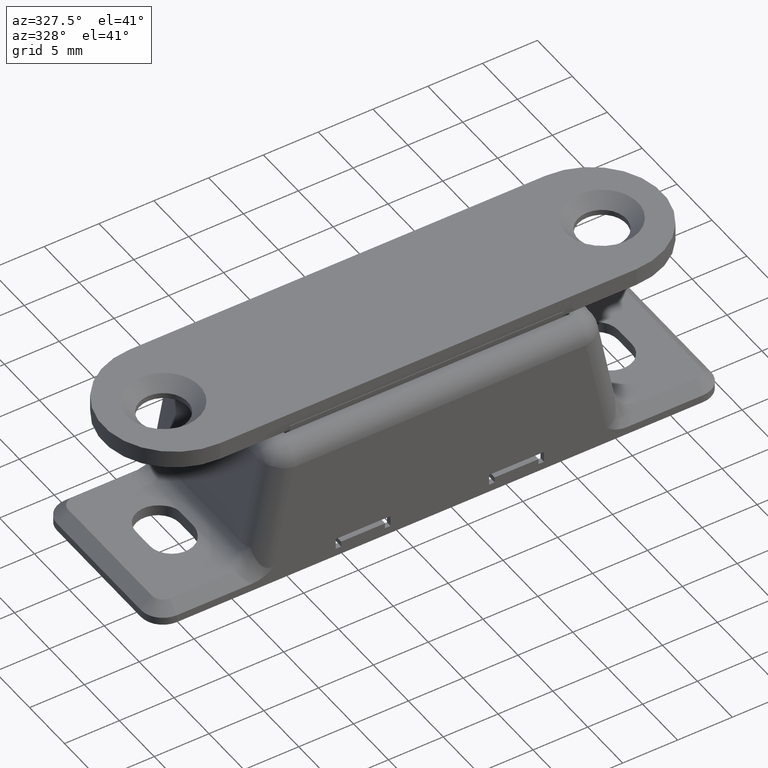
[diagram: clean part render]
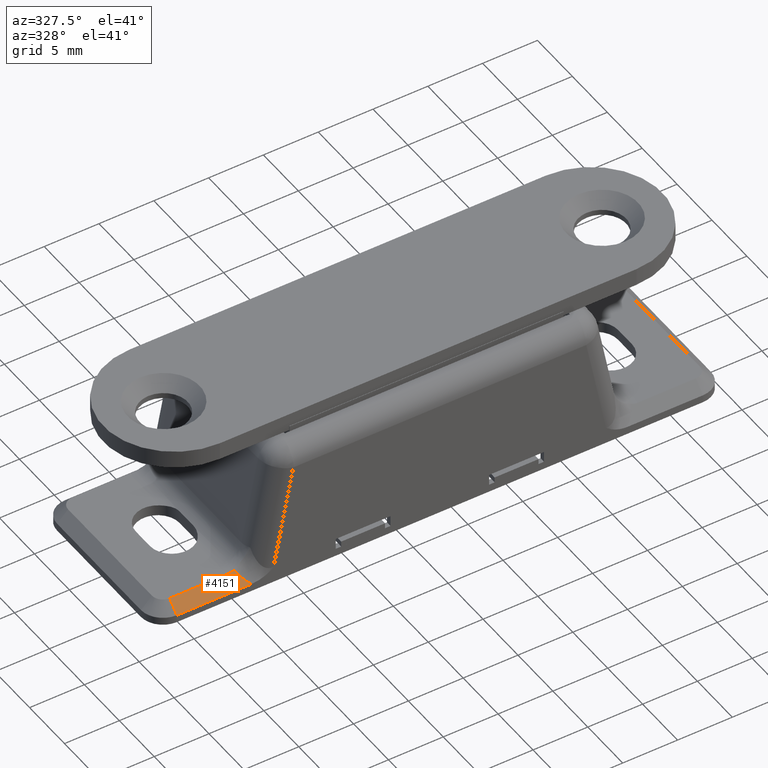
[diagram: same view with one face highlighted and labeled with its STEP entity id]
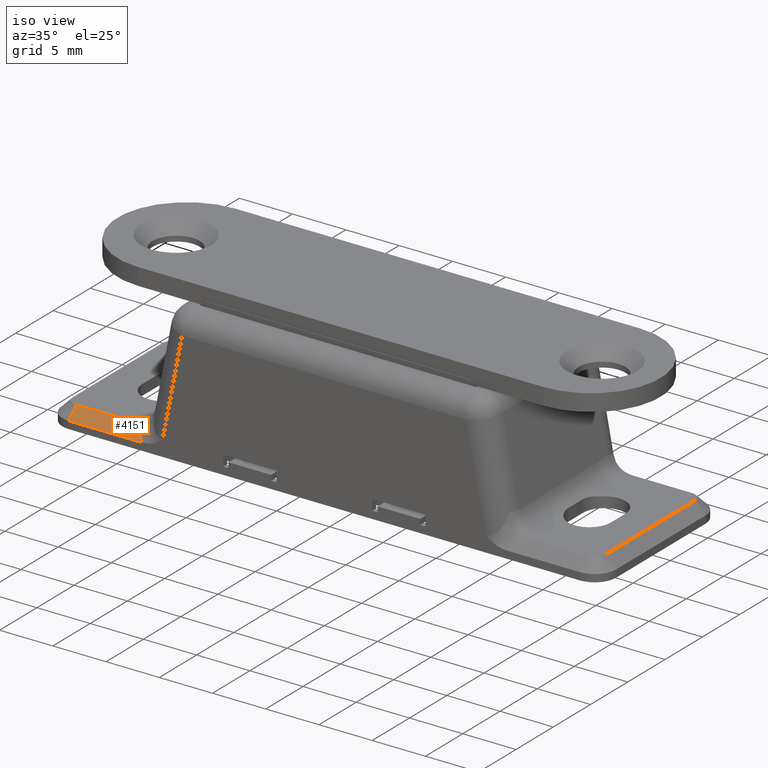
[diagram: same view with one face highlighted and labeled with its STEP entity id]
A machine part, auxiliary view. The second image highlights one B-rep face of the part: STEP entity #4151.
A second angle (iso view) of the same face is appended — the face is thin or edge-on in the first view.
In plain terms, the highlighted planar face has unit normal (-0, -0.7071, 0.7071).
Its self-contained STEP definition (entity closure, byte-faithful):
#86=ELLIPSE('',#4441,5.76273186488626,4.);
#128=B_SPLINE_CURVE_WITH_KNOTS('',3,(#6718,#6719,#6720,#6721,#6722,#6723),
 .UNSPECIFIED.,.F.,.F.,(4,2,4),(0.,0.027721147848625,0.0555198941685207),
 .UNSPECIFIED.);
#427=FACE_OUTER_BOUND('',#666,.T.);
#666=EDGE_LOOP('',(#3270,#3271,#3272,#3273,#3274));
#982=LINE('',#6834,#1422);
#998=LINE('',#7043,#1438);
#999=LINE('',#7044,#1439);
#1422=VECTOR('',#5168,5.323374754276);
#1438=VECTOR('',#5224,1.4142135623731);
#1439=VECTOR('',#5225,6.83764831845524);
#1854=VERTEX_POINT('',#6664);
#1855=VERTEX_POINT('',#6665);
#1860=VERTEX_POINT('',#6716);
#1873=VERTEX_POINT('',#6832);
#1892=VERTEX_POINT('',#7042);
#2340=EDGE_CURVE('',#1854,#1855,#86,.T.);
#2347=EDGE_CURVE('',#1860,#1854,#128,.T.);
#2366=EDGE_CURVE('',#1860,#1873,#982,.F.);
#2400=EDGE_CURVE('',#1873,#1892,#998,.T.);
#2401=EDGE_CURVE('',#1892,#1855,#999,.T.);
#3270=ORIENTED_EDGE('',*,*,#2340,.F.);
#3271=ORIENTED_EDGE('',*,*,#2347,.F.);
#3272=ORIENTED_EDGE('',*,*,#2366,.T.);
#3273=ORIENTED_EDGE('',*,*,#2400,.T.);
#3274=ORIENTED_EDGE('',*,*,#2401,.T.);
#3944=PLANE('',#4475);
#4151=ADVANCED_FACE('',(#427),#3944,.T.);
#4441=AXIS2_PLACEMENT_3D('',#6666,#5132,#5133);
#4475=AXIS2_PLACEMENT_3D('',#7041,#5222,#5223);
#5132=DIRECTION('center_axis',(-3.10737861016576E-16,-0.707106781186548,
0.707106781186547));
#5133=DIRECTION('ref_axis',(-0.265062597303058,-0.681814424719423,-0.681814424719424));
#5168=DIRECTION('',(1.,0.,4.39449697392448E-16));
#5222=DIRECTION('center_axis',(-3.10737861016576E-16,-0.707106781186548,
0.707106781186547));
#5223=DIRECTION('ref_axis',(1.,0.,4.44089209850063E-16));
#5224=DIRECTION('',(0.,-0.707106781186547,-0.707106781186548));
#5225=DIRECTION('',(1.,0.,4.39449697392448E-16));
#6664=CARTESIAN_POINT('',(-18.135975707131,-6.92509419606892,1.77490580393109));
#6665=CARTESIAN_POINT('',(-17.1627006096508,-8.,0.700000000000011));
#6666=CARTESIAN_POINT('Origin',(-14.376017193499,-4.58578643762691,4.11421356237311));
#6716=CARTESIAN_POINT('',(-18.6768934644345,-7.00000000000001,1.70000000000001));
#6718=CARTESIAN_POINT('Ctrl Pts',(-18.6763502744764,-7.,1.70000000000001));
#6719=CARTESIAN_POINT('Ctrl Pts',(-18.5839464495606,-6.99998926844936,1.70001073155064));
#6720=CARTESIAN_POINT('Ctrl Pts',(-18.4919153562458,-6.99366730661225,1.70633269338776));
#6721=CARTESIAN_POINT('Ctrl Pts',(-18.3104319672594,-6.96804616848132,1.73195383151869));
#6722=CARTESIAN_POINT('Ctrl Pts',(-18.2218867111318,-6.94883990150989,1.75116009849012));
#6723=CARTESIAN_POINT('Ctrl Pts',(-18.1364552358992,-6.92343646477526,1.77656353522475));
#6832=CARTESIAN_POINT('',(-24.,-7.,1.70000000000001));
#6834=CARTESIAN_POINT('',(-19.5,-7.,1.70000000000001));
#7041=CARTESIAN_POINT('Origin',(-13.,-7.5,1.20000000000001));
#7042=CARTESIAN_POINT('',(-24.,-8.,0.700000000000006));
#7043=CARTESIAN_POINT('',(-24.,-7.,1.70000000000001));
#7044=CARTESIAN_POINT('',(-6.5,-8.,0.700000000000013));